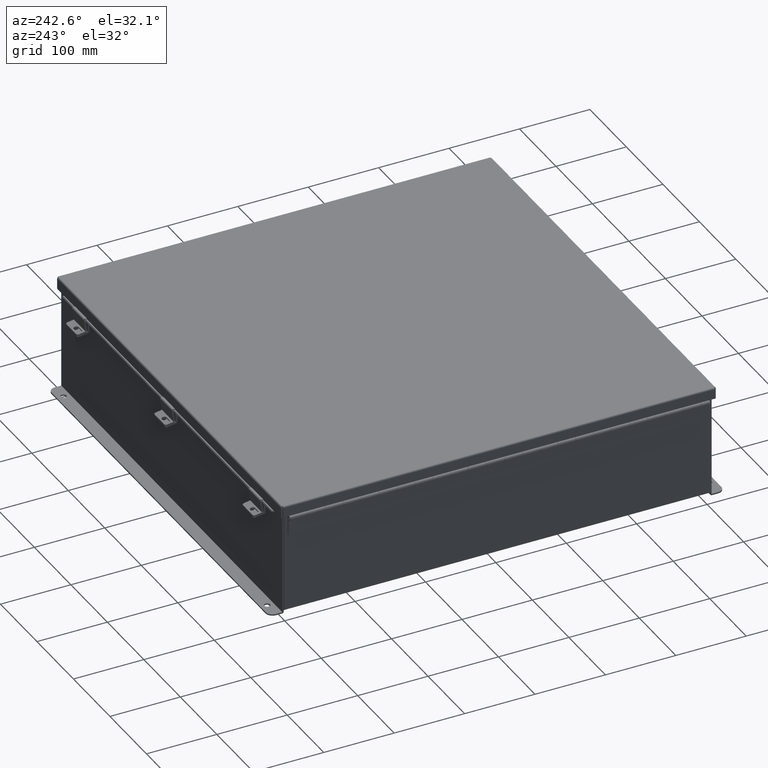
[diagram: clean part render]
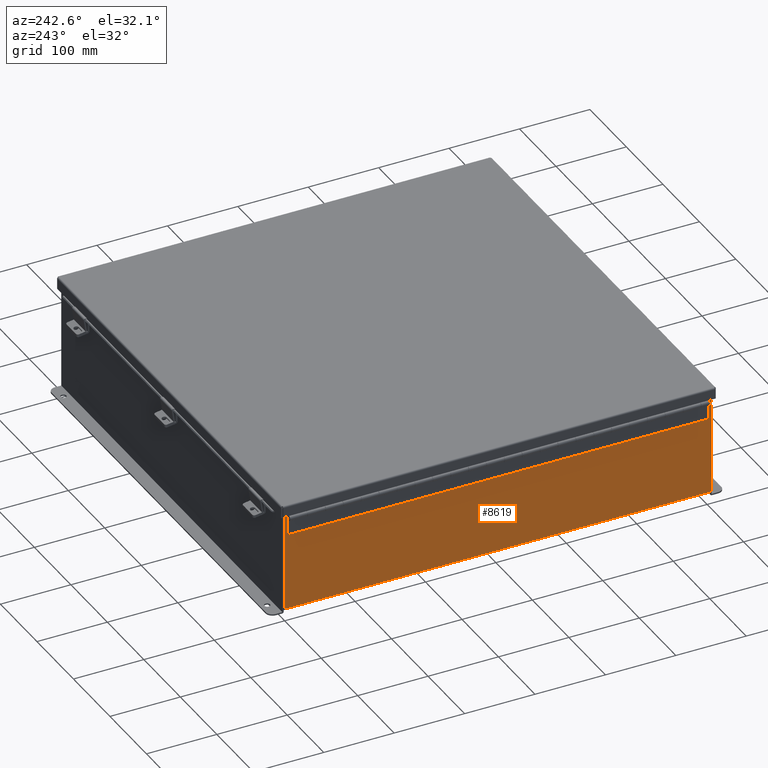
[diagram: same view with one face highlighted and labeled with its STEP entity id]
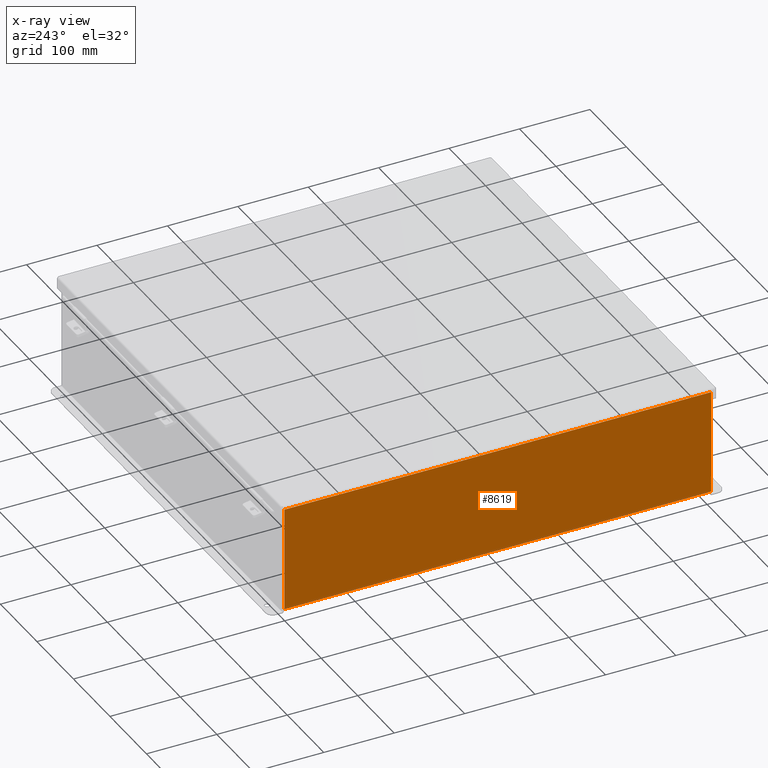
[diagram: x-ray of the same camera — body ghosted, the highlighted face saturated]
A machine part, auxiliary view. The second image highlights one B-rep face of the part: STEP entity #8619.
The next image is the same camera in x-ray: the body ghosted, the highlighted face saturated — about 0% of this face is hidden behind the body in this view.
In plain terms, the highlighted planar face has unit normal (1, 0, 0).
Its self-contained STEP definition (entity closure, byte-faithful):
#1034 = ORIENTED_EDGE ( 'NONE', *, *, #23329, .T. ) ;
#1292 = EDGE_LOOP ( 'NONE', ( #1034, #2825, #17750, #21067 ) ) ;
#1439 = DIRECTION ( 'NONE',  ( 0.0000000000000000000, 1.000000000000000000, 0.0000000000000000000 ) ) ;
#1710 = CARTESIAN_POINT ( 'NONE',  ( -12.00000000000000200, 0.0000000000000000000, -4.060209080583511000E-014 ) ) ;
#2336 = DIRECTION ( 'NONE',  ( -0.0000000000000000000, 1.000000000000000000, -0.0000000000000000000 ) ) ;
#2651 = FACE_OUTER_BOUND ( 'NONE', #1292, .T. ) ;
#2738 = EDGE_CURVE ( 'NONE', #9947, #3919, #21111, .T. ) ;
#2825 = ORIENTED_EDGE ( 'NONE', *, *, #2738, .T. ) ;
#2879 = CARTESIAN_POINT ( 'NONE',  ( -12.00000000000000200, 11.92530000000000000, 0.01299999999999985900 ) ) ;
#3241 = LINE ( 'NONE', #24448, #17974 ) ;
#3919 = VERTEX_POINT ( 'NONE', #2879 ) ;
#4895 = EDGE_CURVE ( 'NONE', #5498, #3919, #14068, .T. ) ;
#5498 = VERTEX_POINT ( 'NONE', #22677 ) ;
#6899 = VECTOR ( 'NONE', #13161, 39.37007874015748100 ) ;
#8619 = ADVANCED_FACE ( 'NONE', ( #2651 ), #24720, .F. ) ;
#9534 = VECTOR ( 'NONE', #2336, 39.37007874015748100 ) ;
#9585 = AXIS2_PLACEMENT_3D ( 'NONE', #1710, #22901, #11281 ) ;
#9947 = VERTEX_POINT ( 'NONE', #17208 ) ;
#11281 = DIRECTION ( 'NONE',  ( 3.361929640444175900E-015, 0.0000000000000000000, -1.000000000000000000 ) ) ;
#11818 = DIRECTION ( 'NONE',  ( 3.361929640444176300E-015, 0.0000000000000000000, -1.000000000000000000 ) ) ;
#12639 = LINE ( 'NONE', #16968, #6899 ) ;
#13161 = DIRECTION ( 'NONE',  ( -3.361929640444176300E-015, 3.735477378271307500E-016, 1.000000000000000000 ) ) ;
#13794 = EDGE_CURVE ( 'NONE', #5498, #24422, #12639, .T. ) ;
#14068 = LINE ( 'NONE', #15963, #9534 ) ;
#15485 = CARTESIAN_POINT ( 'NONE',  ( -12.00000000000000200, 11.92530000000000000, -4.060209080583511000E-014 ) ) ;
#15963 = CARTESIAN_POINT ( 'NONE',  ( -12.00000000000000200, 11.92530000000000000, 0.01299999999999985900 ) ) ;
#16968 = CARTESIAN_POINT ( 'NONE',  ( -12.00000000000000200, -11.92530000000000000, -3.614576376617028200E-014 ) ) ;
#17208 = CARTESIAN_POINT ( 'NONE',  ( -12.00000000000002100, 11.92530000000000000, 5.837599999999999200 ) ) ;
#17750 = ORIENTED_EDGE ( 'NONE', *, *, #4895, .F. ) ;
#17974 = VECTOR ( 'NONE', #1439, 39.37007874015748100 ) ;
#18368 = VECTOR ( 'NONE', #11818, 39.37007874015748100 ) ;
#21067 = ORIENTED_EDGE ( 'NONE', *, *, #13794, .T. ) ;
#21111 = LINE ( 'NONE', #15485, #18368 ) ;
#22677 = CARTESIAN_POINT ( 'NONE',  ( -12.00000000000000200, -11.92529999999999800, 0.01299999999999985900 ) ) ;
#22700 = CARTESIAN_POINT ( 'NONE',  ( -12.00000000000002100, -11.92529999999999800, 5.837599999999999200 ) ) ;
#22901 = DIRECTION ( 'NONE',  ( 1.000000000000000000, 0.0000000000000000000, 3.361929640444175900E-015 ) ) ;
#23329 = EDGE_CURVE ( 'NONE', #24422, #9947, #3241, .T. ) ;
#24422 = VERTEX_POINT ( 'NONE', #22700 ) ;
#24448 = CARTESIAN_POINT ( 'NONE',  ( -12.00000000000002100, -11.92530000000000000, 5.837599999999999200 ) ) ;
#24720 = PLANE ( 'NONE',  #9585 ) ;